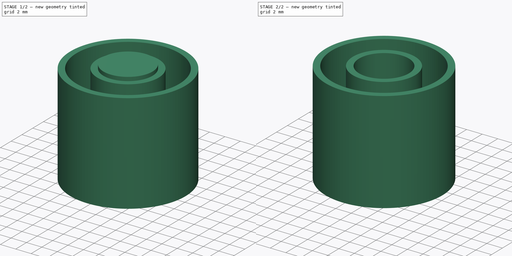
[diagram: build sequence overview — one tinted view per stage of 2, left to right]
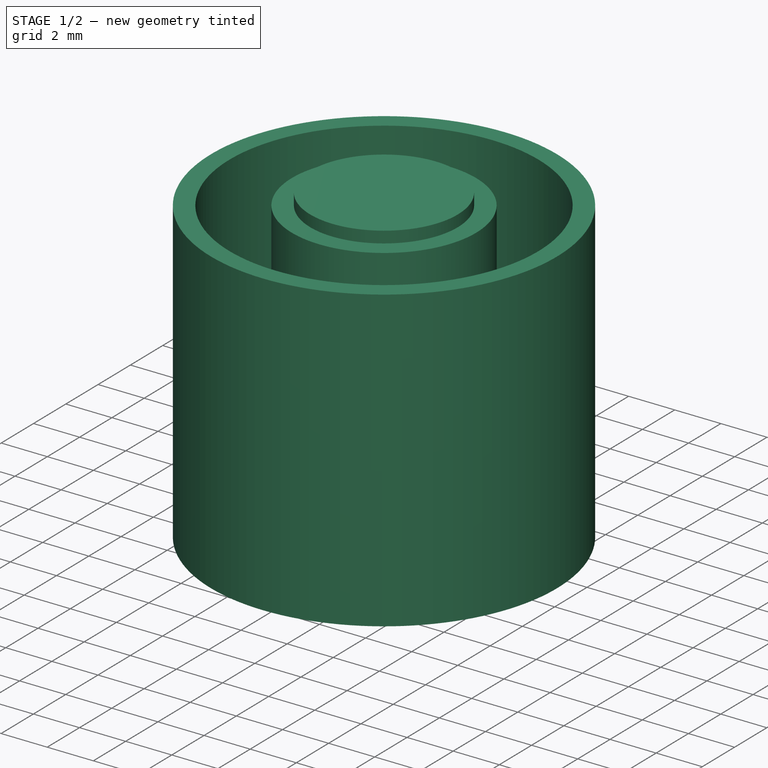
[diagram: stage 1 of 2 — iso view after this stage's code; geometry added in this stage tinted green]
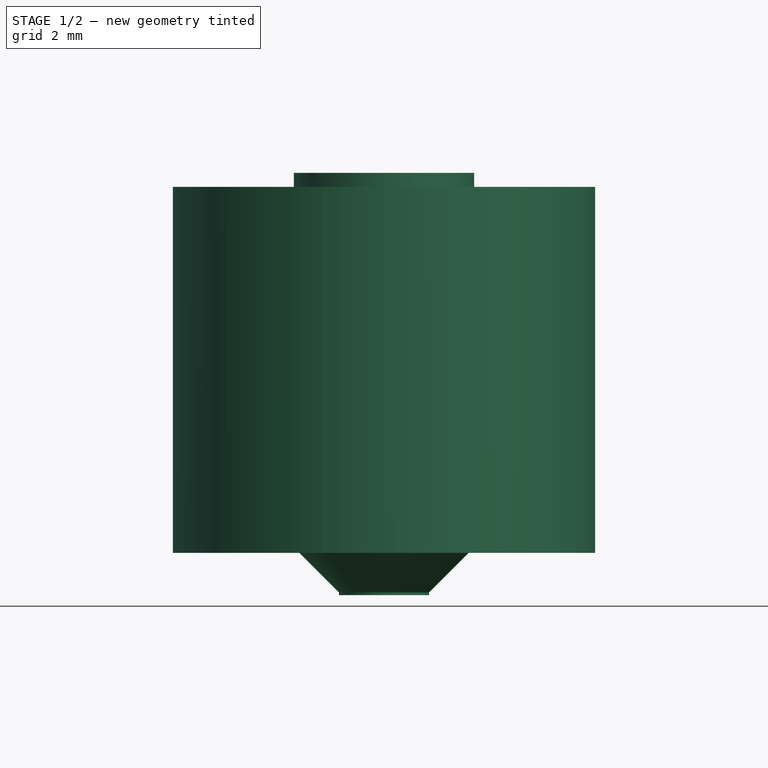
[diagram: stage 1 of 2 — front view after this stage's code; geometry added in this stage tinted green]
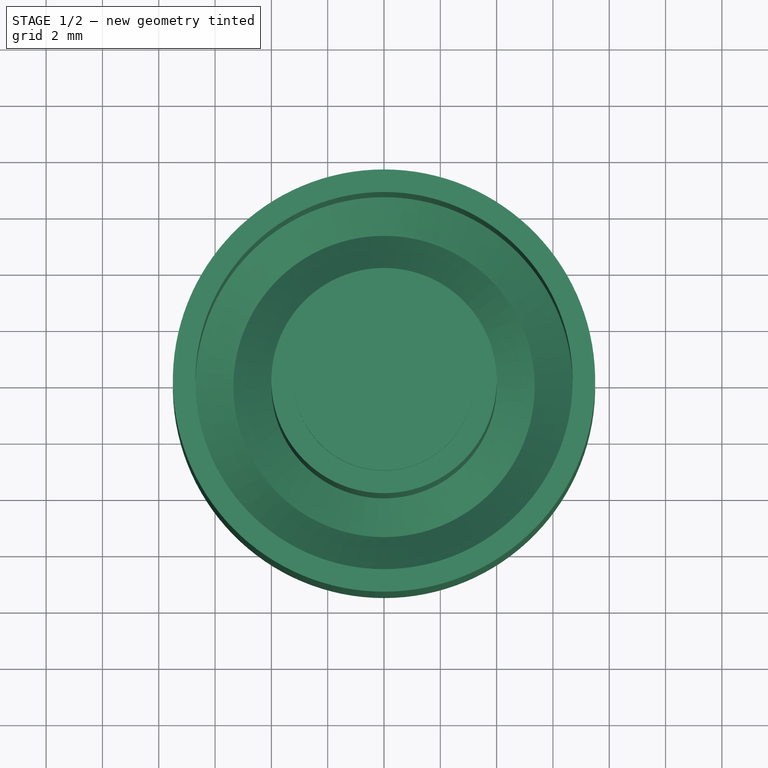
[diagram: stage 1 of 2 — top view after this stage's code; geometry added in this stage tinted green]
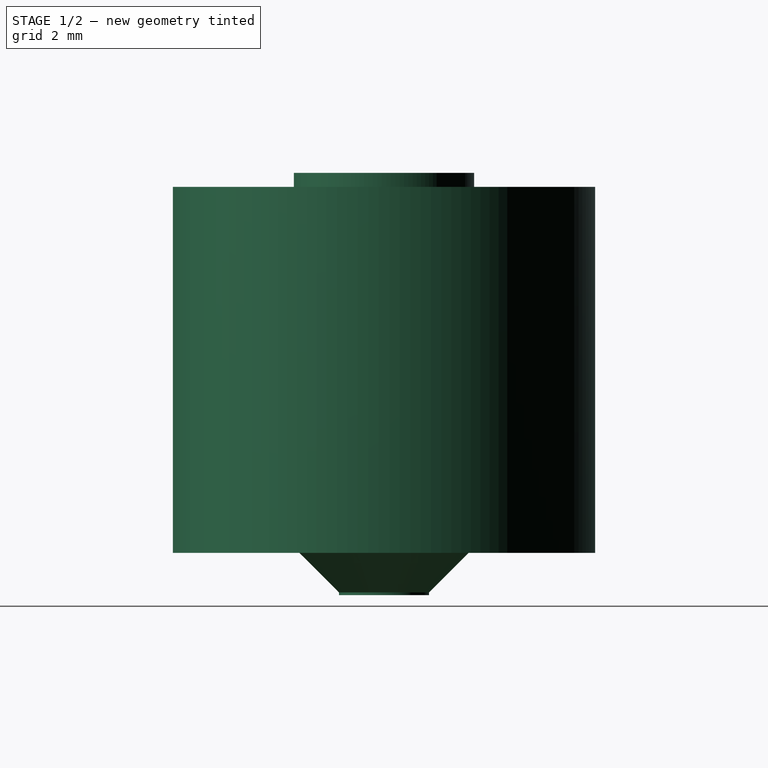
[diagram: stage 1 of 2 — right view after this stage's code; geometry added in this stage tinted green]
FCSTD DOCUMENT  (FreeCAD 0.18R15363 (Git))
Label: JackyTouchButee
License: All rights reserved
LicenseURL: http://en.wikipedia.org/wiki/All_rights_reserved
objects: Sketcher::SketchObject×2, Part::Revolution×2, Part::Cut×1
note: 5 computed .brp shape members not serialized (recipe doc carries the construction recipe); baked Part::Feature solids carry a one-line shape summary decoded from their .brp

FEATURE [Sketcher::SketchObject] Sketch003
  Placement = pos=(0,0,0) rot=(0.57735,0.57735,0.57735;2.0944rad)
  sketch-geometry (6):
    g0: LineSegment StartX=0 StartY=0 StartZ=0 EndX=1.6 EndY=0 EndZ=0
    g1: LineSegment StartX=1.6 StartY=0 StartZ=0 EndX=1.6 EndY=1 EndZ=0
    g2: LineSegment StartX=1.6 StartY=1 StartZ=0 EndX=3.2 EndY=2.6 EndZ=0
    g3: LineSegment StartX=3.2 StartY=2.6 StartZ=0 EndX=3.2 EndY=15 EndZ=0
    g4: LineSegment StartX=3.2 StartY=15 StartZ=0 EndX=0 EndY=15 EndZ=0
    g5: LineSegment StartX=0 StartY=15 StartZ=0 EndX=0 EndY=0 EndZ=0
  constraints (17):
    c: Coincident(g0,g-1)
    c: Horizontal(g0)
    c: Vertical(g1)
    c: Coincident(g2,g1)
    c: Coincident(g3,g2)
    c: Vertical(g3)
    c: Coincident(g4,g3)
    c: PointOnObject(g4,g-2)
    c: Horizontal(g4)
    c: Coincident(g5,g4)
    c: Coincident(g5,g0)
    c: Coincident(g0,g1)
    c: DistanceX(g0,g0) = 1.6
    c: DistanceY(g0,g1) = 1
    c: Angle(g-1,g2) = 0.785398
    c: DistanceX(g4,g3) = 3.2
    c: DistanceY(g0,g4) = 15
FEATURE [Part::Revolution] Revolve  label="Screw"
  Angle = 360
  Axis = (0,0,1)
  Base = (0,0,0)
  FaceMakerClass = Part::FaceMakerBullseye
  Solid = true
  Source = -> Sketch003
  Symmetric = false
FEATURE [Sketcher::SketchObject] Sketch
  Placement = pos=(0,0,0) rot=(0.57735,0.57735,0.57735;2.0944rad)
  sketch-geometry (11):
    g0: LineSegment StartX=3 StartY=1.5 StartZ=0 EndX=7.5 EndY=1.5 EndZ=0
    g1: LineSegment StartX=7.5 StartY=1.5 StartZ=0 EndX=7.5 EndY=14.5 EndZ=0
    g2: LineSegment StartX=7.5 StartY=14.5 StartZ=0 EndX=6.7 EndY=14.5 EndZ=0
    g3: LineSegment StartX=1.5 StartY=0 StartZ=0 EndX=3 EndY=1.5 EndZ=0
    g4: LineSegment StartX=1.5 StartY=0 StartZ=0 EndX=0 EndY=0 EndZ=0
    g5: LineSegment StartX=0 StartY=14.5 StartZ=0 EndX=0 EndY=0 EndZ=0
    g6: LineSegment StartX=4 StartY=14.5 StartZ=0 EndX=4 EndY=3.85 EndZ=0
    g7: LineSegment StartX=6.7 StartY=14.5 StartZ=0 EndX=6.7 EndY=3.85 EndZ=0
    g8: LineSegment StartX=4 StartY=3.85 StartZ=0 EndX=5.35 EndY=2.5 EndZ=0
    g9: LineSegment StartX=5.35 StartY=2.5 StartZ=0 EndX=6.7 EndY=3.85 EndZ=0
    g10: LineSegment StartX=4 StartY=14.5 StartZ=0 EndX=0 EndY=14.5 EndZ=0
  constraints (31):
    c: Horizontal(g0)
    c: Vertical(g1)
    c: Coincident(g2,g1)
    c: PointOnObject(g10,g-2)
    c: Horizontal(g2)
    c: DistanceX(g10,g1) = 7.5
    c: Angle(g-1,g3) = 0.785398
    c: Coincident(g4,g3)
    c: Horizontal(g4)
    c: Coincident(g0,g3)
    c: Coincident(g1,g0)
    c: Coincident(g5,g4)
    c: Coincident(g5,g10)
    c: Coincident(g4,g-1)
    c: DistanceX(g4,g3) = 1.5
    c: DistanceY(g0,g1) = 13
    c: DistanceX(g4,g0) = 3
    c: Vertical(g6)
    c: Vertical(g7)
    c: Coincident(g8,g6)
    c: Coincident(g9,g8)
    c: Coincident(g9,g7)
    c: Angle(g9,g8) = 1.5708
    c: Equal(g8,g9)
    c: Equal(g6,g7)
    c: DistanceY(g0,g8) = 1
    c: Coincident(g2,g7)
    c: Coincident(g10,g6)
    c: Tangent(g2,g10)
    c: DistanceX(g2,g1) = 0.8
    c: DistanceX(g5,g6) = 4
FEATURE [Part::Revolution] Revolve001  label="Body"
  Angle = 360
  Axis = (0,0,1)
  Base = (0,0,0)
  FaceMakerClass = Part::FaceMakerBullseye
  Solid = true
  Source = -> Sketch
  Symmetric = false
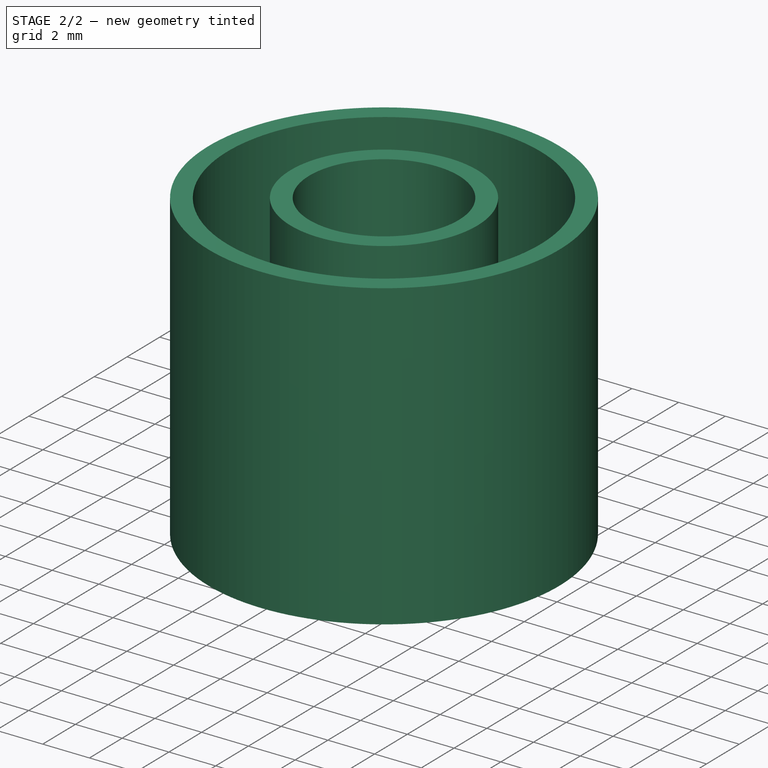
[diagram: stage 2 of 2 — iso view after this stage's code; geometry added in this stage tinted green]
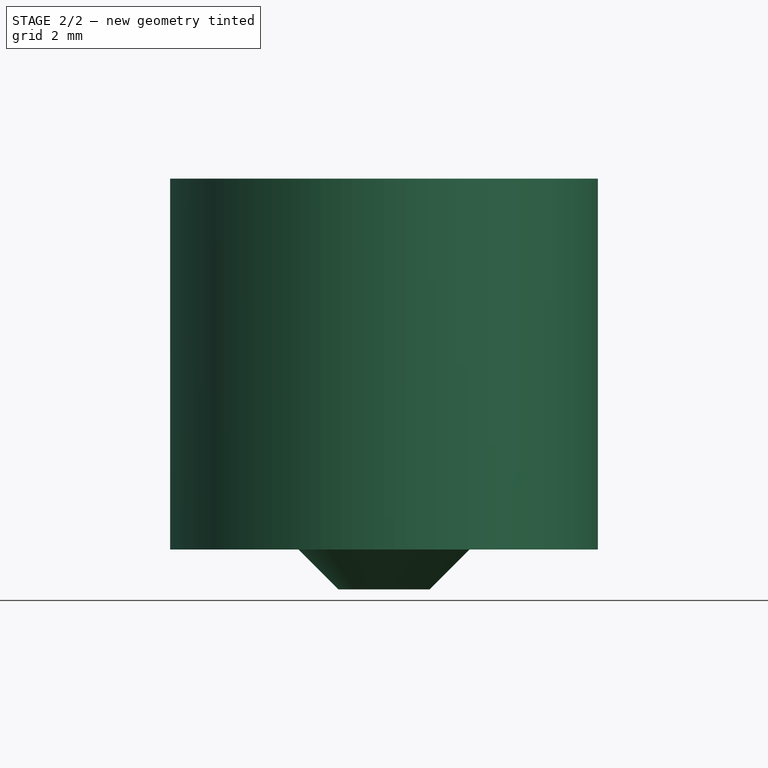
[diagram: stage 2 of 2 — front view after this stage's code; geometry added in this stage tinted green]
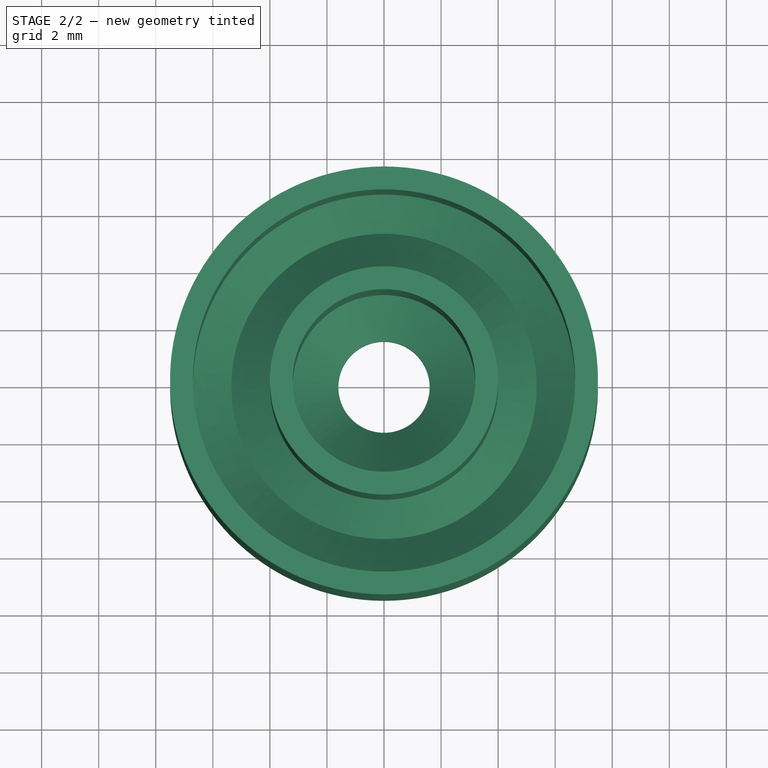
[diagram: stage 2 of 2 — top view after this stage's code; geometry added in this stage tinted green]
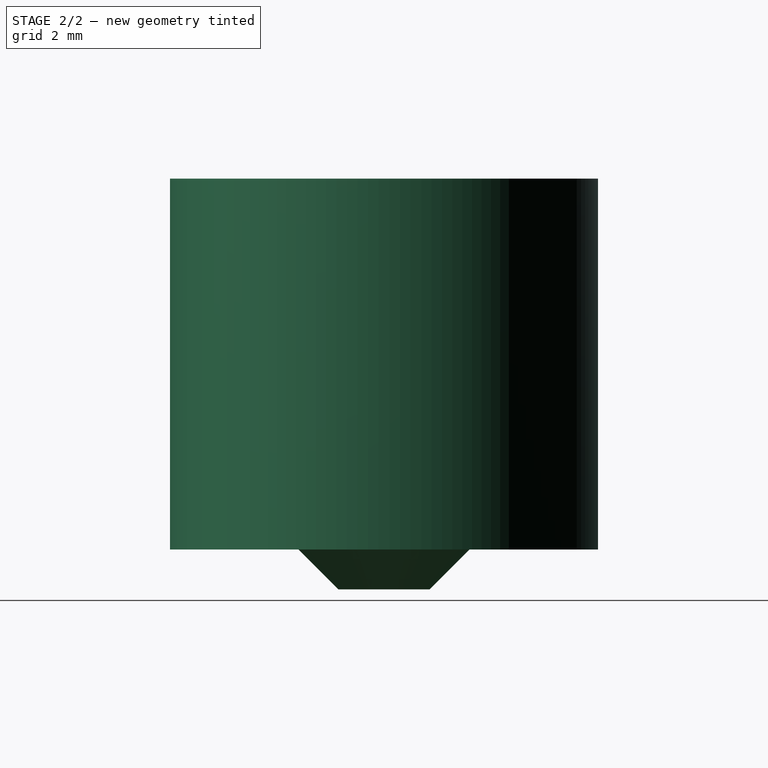
[diagram: stage 2 of 2 — right view after this stage's code; geometry added in this stage tinted green]
FEATURE [Part::Cut] Cut
  Base = -> Revolve001
  Tool = -> Revolve
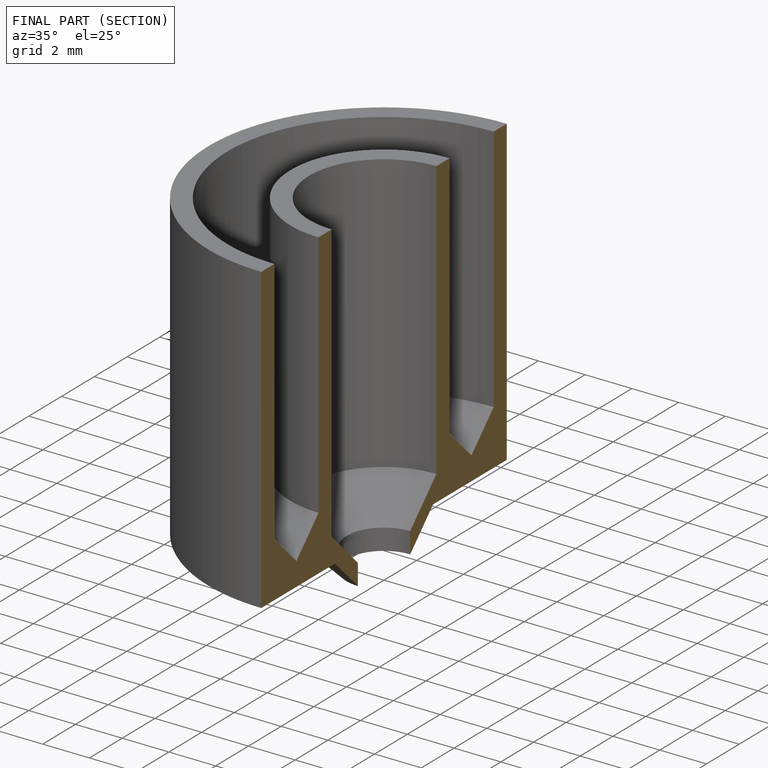
[diagram: finished part — half-section view (interior)]
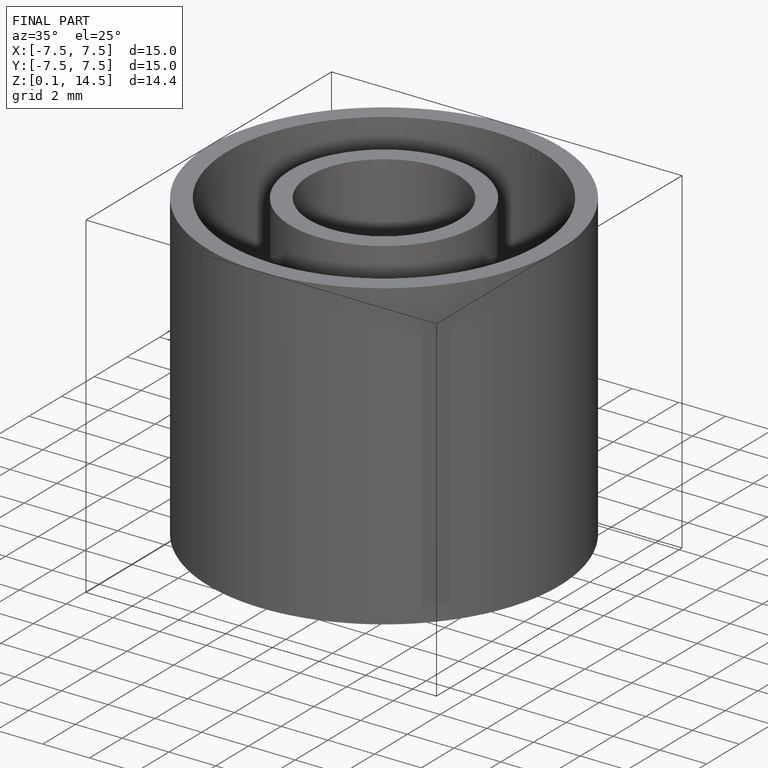
[diagram: finished part — iso view with bounding-box wireframe]
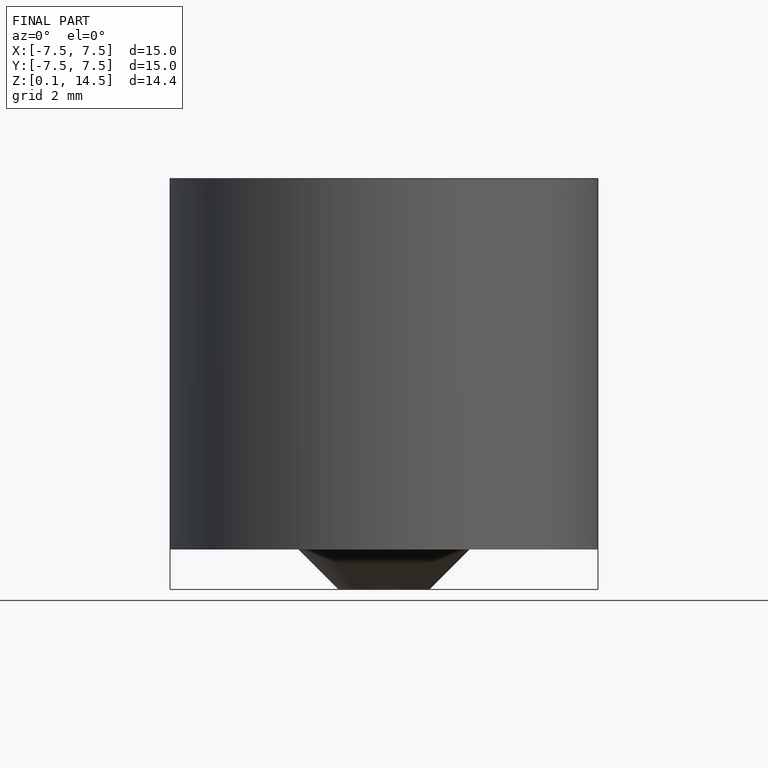
[diagram: finished part — front view with bounding-box wireframe]
